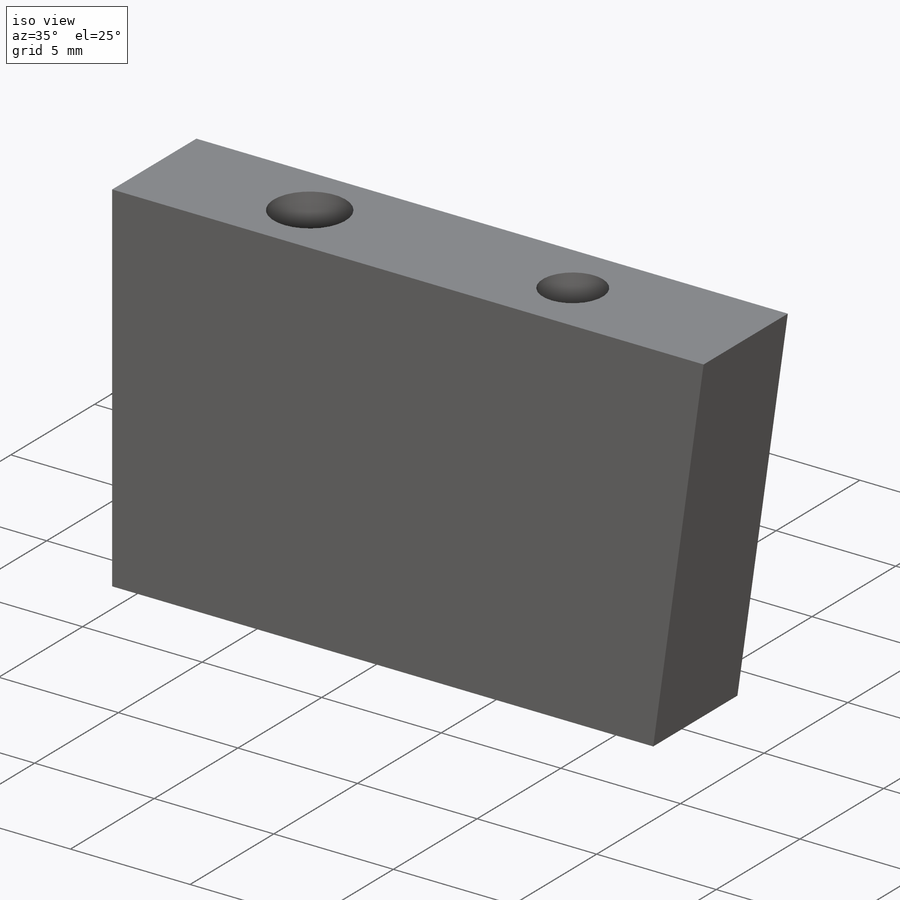
[diagram: iso view]
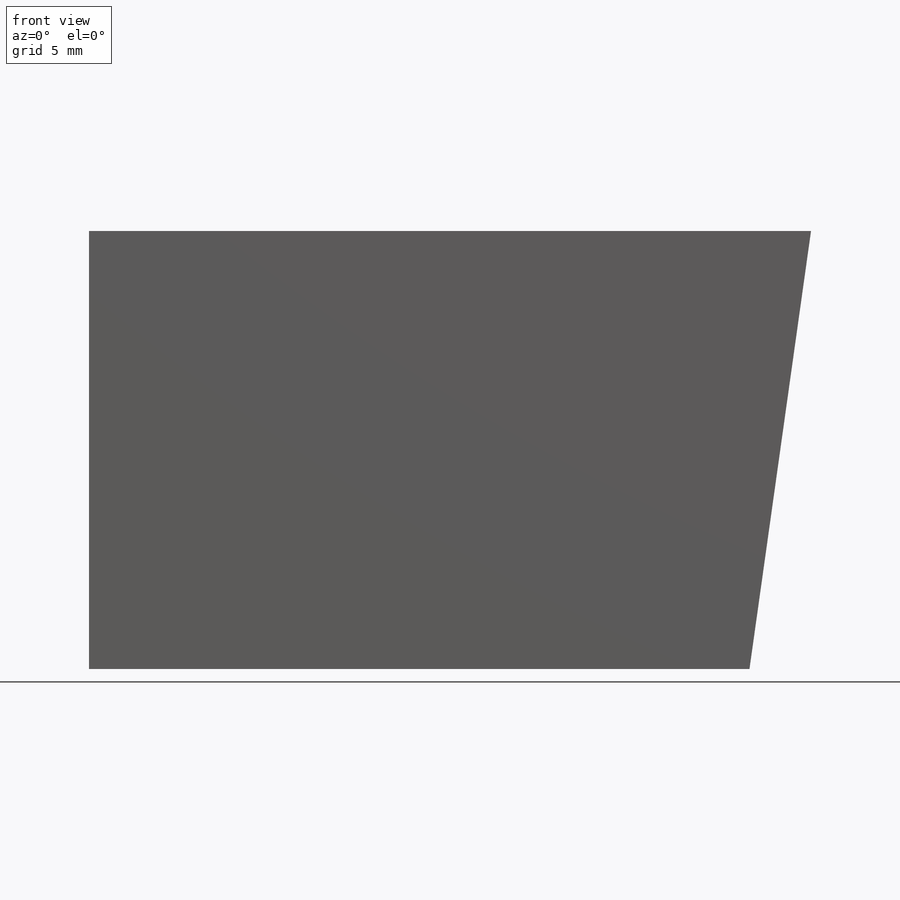
[diagram: front view]
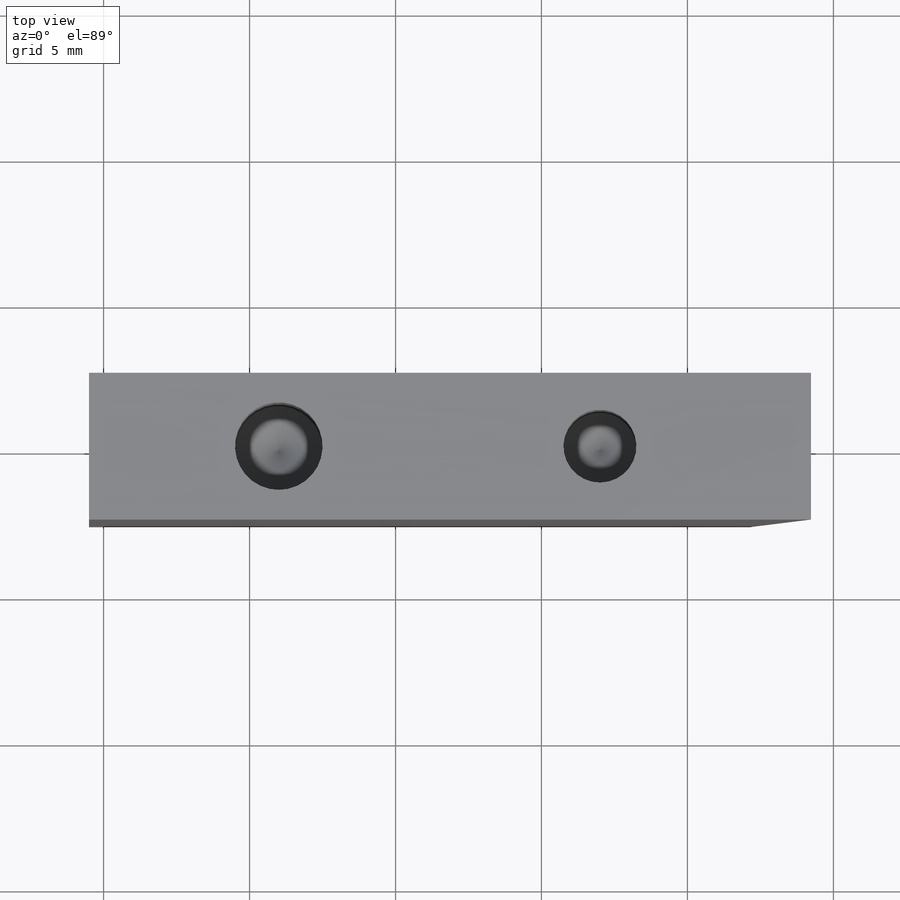
[diagram: top view]
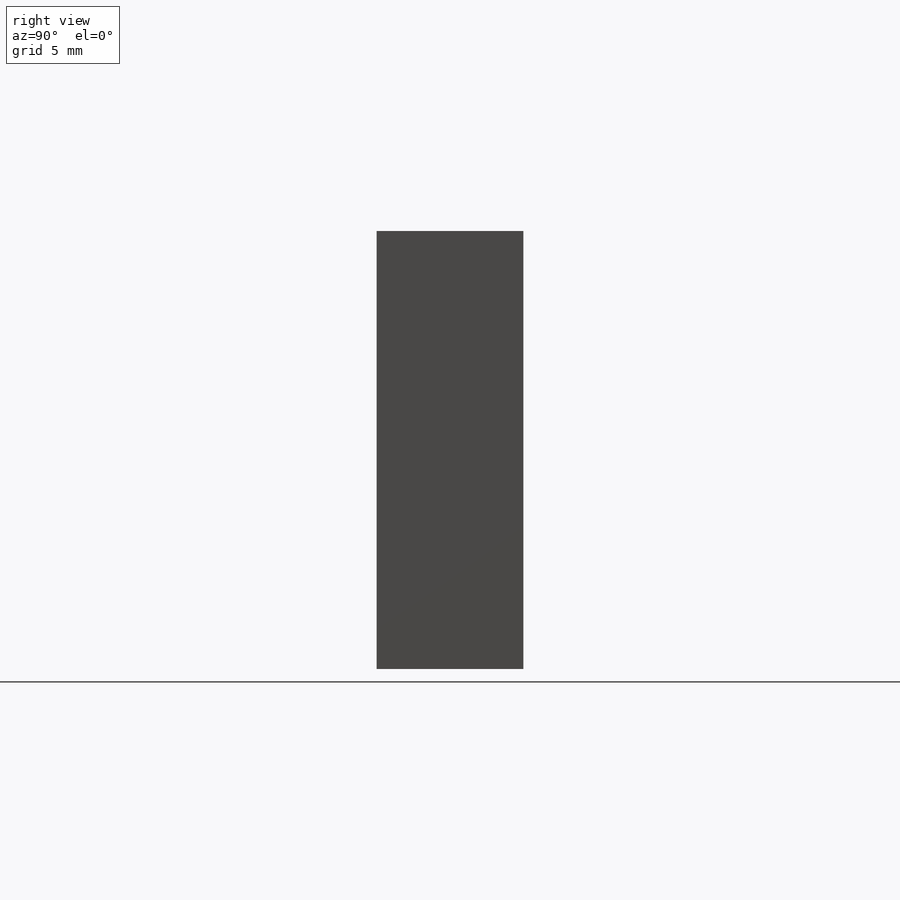
[diagram: right view]
SOLIDWORKS PART (.sldprt)
format: sldprt  version: not decoded by parser v0  size: 7,438,848 bytes
history: native  units: mm
features: sketch x10, plane x3, hole x3, cut_extrude x2, material x1, extrude x1, mirror x1, thread x1, chamfer x1 + 2 further entries (+12 scaffold rows collapsed)
feature tree (37):
  scaffold x12  (default folders/planes/origin — collapsed)
  material  "Material <not specified>"
  plane  "Plane1"
  plane  "Plane2"
  plane  "Plane3"
  "Axis2"
  "Axis3"
  sketch  "Sketch20"  dims[c1.D1=25.0mm c1.D2=~20.895201mm c2.D2=56.99deg c2.D3=~7.933879mm c3.D3=7.8deg c3.D4=12.8mm c3.D5=~20.015235mm c4.D5=~27.498039deg c4.D6=~33.374468mm c5.D6=7.8deg c5.D2=~34.162034mm c6.D2=7.8deg c6.D3=12.8mm c7.D2=~34.219924mm c8.D2=7.8deg c8.D4=~7.006855mm c9.D4=7.8deg c9.D5=~6.384893mm c10.D5=7.8deg c10.D6=~19.994576mm c11.D6=~27.982753deg c11.D7=~34.219924mm c12.D7=~55.965505deg c12.D8=~29.281762mm c13.D8=~27.982753deg c13.D9=0.24mm]
  sketch  "Sketch1"  dims[c1.D1=48.0mm c1.D2=75.0mm c1.D3=3.0mm c1.D6=20.0mm c1.D4=3.0mm c2.D3=20.0mm c2.D4=~38.140072mm c2.D6=65.4205mm c3.D4=~9.374237mm c4.D4=10.0deg c5.D4=~13.105602mm c6.D4=13.0deg c6.D5=~79.853358mm c7.D5=45.0deg c7.D7=12.0mm c7.D8=~29.970467mm c7.D9=416.0mm c7.D10=~30.792865mm c7.D11=~7.616925mm c8.D11=~48.097911deg c8.D4=7.7mm c8.D5=~90.079973mm c9.D5=8.0deg c9.D4=~13.583621mm c9.D6=~7.553865mm c9.D11=~55.13031mm c9.D12=~53.560842mm c9.D7=12.0mm c9.D8=4.5mm]
  extrude  "Extrude1"  Depth=5.03mm
  hole  "M3x0.5 Tapped Hole2"  Diameter=3mm Depth=7.5mm
  sketch  "Sketch33"  dims[D1=198.0mm D2=37.0mm D3=37.0mm D4=37.0mm D5=37.0mm]
  sketch  "Sketch32"  dims[hole-wizard template sketch: 50 standard entries collapsed; hole parameters above]
  mirror  "Mirror2"
  sketch  "Sketch36"  dims[D2=5.0mm D3=193.0mm D1=0.0mm]
  cut_extrude  "Cut-Extrude1"  [1 undecoded]
  sketch  "Sketch37"  dims[D2=10.0mm D3=161.0mm D1=0.0mm]
  cut_extrude  "Cut-Extrude2"  [1 undecoded]
  hole  "M3x0.5 Tapped Hole1"  Diameter=3mm Depth=7.5mm
  sketch  "Sketch39"  dims[D1=11.0mm]
  sketch  "Sketch38"  dims[hole-wizard template sketch: 50 standard entries collapsed; hole parameters above]
  thread  "Hole Thread1"  Diameter=6mm  [1 undecoded]
  hole  "Ø2.5 (2.5) Diameter Hole1"  Diameter=2.5mm Depth=6mm
  sketch  "Sketch41"  dims[D1=11.0mm]
  sketch  "Sketch40"  dims[hole-wizard template sketch: 50 standard entries collapsed; hole parameters above]
  chamfer  "Chamfer1"  Distance=0.5mm Angle=45deg
decode coverage: 16 of 19 modeling features carry decoded parameters; 2 rows unclassified (native names shown)
note: ~ marks probable driven/reference dimensions
note: 3 parameter values undecoded
note: suppression state not decoded; provenance and decode notes live in map.json
